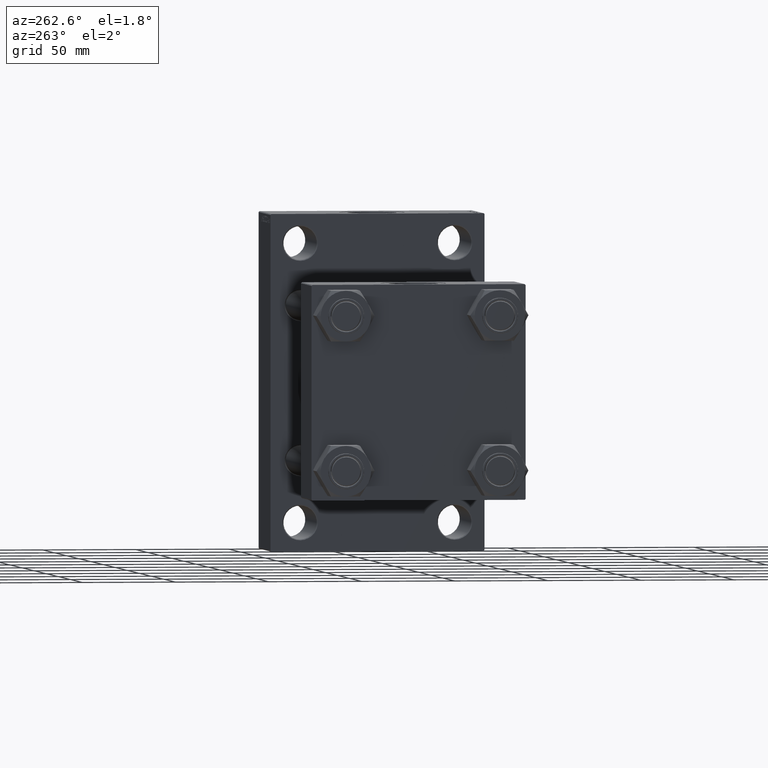
[diagram: clean part render]
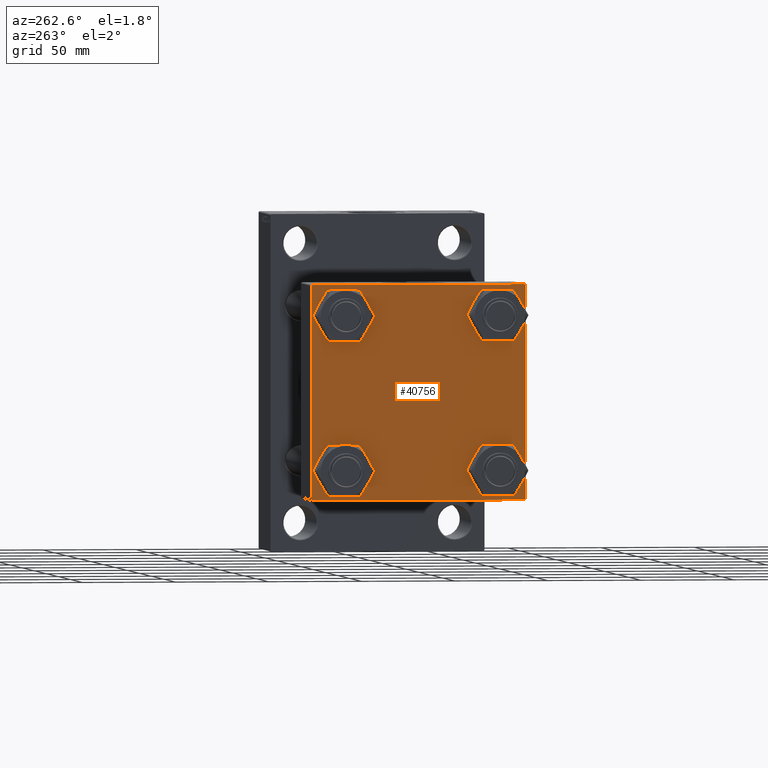
[diagram: same view with one face highlighted and labeled with its STEP entity id]
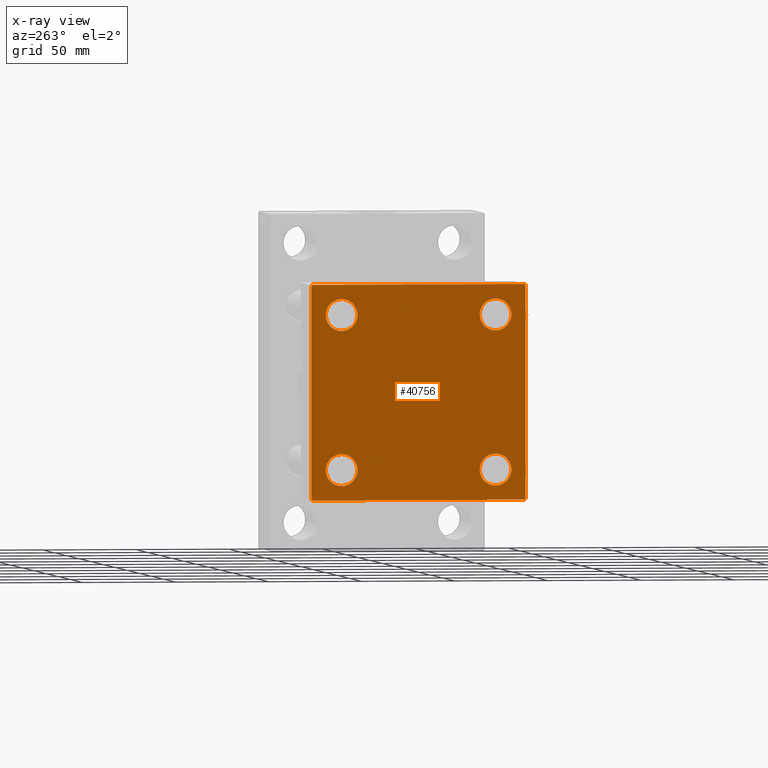
[diagram: x-ray of the same camera — body ghosted, the highlighted face saturated]
A machine part, auxiliary view. The second image highlights one B-rep face of the part: STEP entity #40756.
The next image is the same camera in x-ray: the body ghosted, the highlighted face saturated — about 0% of this face is hidden behind the body in this view.
In plain terms, the highlighted planar face has unit normal (-1, 0, 0).
Its self-contained STEP definition (entity closure, byte-faithful):
#283 = ORIENTED_EDGE ( 'NONE', *, *, #29268, .T. ) ;
#549 = CARTESIAN_POINT ( 'NONE',  ( 0.000000000000000000, -41.34999999999998721, 41.35000000000000853 ) ) ;
#961 = VECTOR ( 'NONE', #6995, 1000.000000000000114 ) ;
#1116 = CARTESIAN_POINT ( 'NONE',  ( 0.000000000000000000, 57.00000000000000711, 57.50000000000000711 ) ) ;
#1377 = EDGE_CURVE ( 'NONE', #48025, #29083, #45943, .T. ) ;
#1461 = DIRECTION ( 'NONE',  ( 1.000000000000000000, -0.000000000000000000, 0.000000000000000000 ) ) ;
#1639 = CARTESIAN_POINT ( 'NONE',  ( 0.000000000000000000, -41.34999999999998721, -32.85000000000001563 ) ) ;
#2412 = CARTESIAN_POINT ( 'NONE',  ( 0.000000000000000000, 57.49999999999999289, 57.00000000000003553 ) ) ;
#2436 = VERTEX_POINT ( 'NONE', #12231 ) ;
#2460 = DIRECTION ( 'NONE',  ( 1.000000000000000000, -0.000000000000000000, 0.000000000000000000 ) ) ;
#2568 = CARTESIAN_POINT ( 'NONE',  ( 0.000000000000000000, 41.34999999999999432, -32.85000000000000853 ) ) ;
#2900 = FACE_BOUND ( 'NONE', #11682, .T. ) ;
#3563 = EDGE_CURVE ( 'NONE', #21067, #13754, #21787, .T. ) ;
#3828 = VERTEX_POINT ( 'NONE', #36601 ) ;
#3999 = DIRECTION ( 'NONE',  ( 0.000000000000000000, 0.000000000000000000, -1.000000000000000000 ) ) ;
#4761 = DIRECTION ( 'NONE',  ( 1.000000000000000000, -0.000000000000000000, 0.000000000000000000 ) ) ;
#4861 = VERTEX_POINT ( 'NONE', #24474 ) ;
#4891 = AXIS2_PLACEMENT_3D ( 'NONE', #44220, #8012, #22919 ) ;
#6445 = DIRECTION ( 'NONE',  ( 0.000000000000000000, 0.000000000000000000, 1.000000000000000000 ) ) ;
#6842 = DIRECTION ( 'NONE',  ( 1.000000000000000000, -0.000000000000000000, 0.000000000000000000 ) ) ;
#6995 = DIRECTION ( 'NONE',  ( 0.000000000000000000, -0.7071067811865474617, 0.7071067811865474617 ) ) ;
#7182 = DIRECTION ( 'NONE',  ( 1.000000000000000000, -0.000000000000000000, 0.000000000000000000 ) ) ;
#7540 = FACE_BOUND ( 'NONE', #29568, .T. ) ;
#7629 = ORIENTED_EDGE ( 'NONE', *, *, #28561, .T. ) ;
#7654 = CARTESIAN_POINT ( 'NONE',  ( 0.000000000000000000, 57.00000000000002132, -57.49999999999999289 ) ) ;
#7665 = LINE ( 'NONE', #11566, #34459 ) ;
#7908 = VECTOR ( 'NONE', #14276, 1000.000000000000114 ) ;
#8012 = DIRECTION ( 'NONE',  ( -1.000000000000000000, 0.000000000000000000, -0.000000000000000000 ) ) ;
#8148 = DIRECTION ( 'NONE',  ( 0.000000000000000000, -1.000000000000000000, -1.206764157201257045E-16 ) ) ;
#8230 = ORIENTED_EDGE ( 'NONE', *, *, #39907, .T. ) ;
#8377 = CARTESIAN_POINT ( 'NONE',  ( 0.000000000000000000, -57.50000000000000711, 57.49999999999999289 ) ) ;
#8838 = AXIS2_PLACEMENT_3D ( 'NONE', #46035, #12540, #45325 ) ;
#9021 = CARTESIAN_POINT ( 'NONE',  ( 0.000000000000000000, 41.34999999999999432, 32.85000000000000853 ) ) ;
#9954 = ORIENTED_EDGE ( 'NONE', *, *, #47219, .T. ) ;
#10092 = CIRCLE ( 'NONE', #38198, 8.499999999999992895 ) ;
#10450 = EDGE_LOOP ( 'NONE', ( #42714, #9954 ) ) ;
#10498 = CARTESIAN_POINT ( 'NONE',  ( 0.000000000000000000, 41.34999999999999432, 41.35000000000000142 ) ) ;
#10614 = EDGE_CURVE ( 'NONE', #16938, #2436, #47772, .T. ) ;
#11421 = VERTEX_POINT ( 'NONE', #36043 ) ;
#11469 = ORIENTED_EDGE ( 'NONE', *, *, #15853, .T. ) ;
#11566 = CARTESIAN_POINT ( 'NONE',  ( 0.000000000000000000, 57.49999999999999289, -57.49999999999999289 ) ) ;
#11682 = EDGE_LOOP ( 'NONE', ( #11469, #42331 ) ) ;
#12011 = CIRCLE ( 'NONE', #36225, 8.499999999999992895 ) ;
#12187 = ORIENTED_EDGE ( 'NONE', *, *, #40263, .T. ) ;
#12231 = CARTESIAN_POINT ( 'NONE',  ( 0.000000000000000000, -57.00000000000003553, 57.49999999999999289 ) ) ;
#12254 = EDGE_CURVE ( 'NONE', #47296, #31603, #7665, .T. ) ;
#12260 = EDGE_CURVE ( 'NONE', #16938, #41501, #19372, .T. ) ;
#12394 = AXIS2_PLACEMENT_3D ( 'NONE', #33331, #7182, #44581 ) ;
#12540 = DIRECTION ( 'NONE',  ( 1.000000000000000000, -0.000000000000000000, 0.000000000000000000 ) ) ;
#13645 = DIRECTION ( 'NONE',  ( 0.000000000000000000, -1.000000000000000000, -1.206764157201257045E-16 ) ) ;
#13754 = VERTEX_POINT ( 'NONE', #9021 ) ;
#13844 = LINE ( 'NONE', #17768, #24363 ) ;
#13919 = CARTESIAN_POINT ( 'NONE',  ( 0.000000000000000000, 41.34999999999999432, 49.85000000000000142 ) ) ;
#14149 = EDGE_CURVE ( 'NONE', #31603, #41501, #34758, .T. ) ;
#14276 = DIRECTION ( 'NONE',  ( -0.000000000000000000, 0.7071067811865376918, 0.7071067811865573427 ) ) ;
#15453 = DIRECTION ( 'NONE',  ( 1.000000000000000000, -0.000000000000000000, 0.000000000000000000 ) ) ;
#15631 = ORIENTED_EDGE ( 'NONE', *, *, #30094, .F. ) ;
#15853 = EDGE_CURVE ( 'NONE', #11421, #29589, #35392, .T. ) ;
#15992 = AXIS2_PLACEMENT_3D ( 'NONE', #549, #15453, #32648 ) ;
#16938 = VERTEX_POINT ( 'NONE', #32592 ) ;
#17768 = CARTESIAN_POINT ( 'NONE',  ( 0.000000000000000000, 57.24999999999922551, 57.25000000000081712 ) ) ;
#18568 = ORIENTED_EDGE ( 'NONE', *, *, #12260, .F. ) ;
#18799 = LINE ( 'NONE', #25421, #40786 ) ;
#19314 = CIRCLE ( 'NONE', #32581, 8.499999999999992895 ) ;
#19372 = LINE ( 'NONE', #8377, #40721 ) ;
#19481 = VECTOR ( 'NONE', #13645, 1000.000000000000000 ) ;
#20125 = CARTESIAN_POINT ( 'NONE',  ( 0.000000000000000000, -57.00000000000000711, -57.50000000000000711 ) ) ;
#20374 = CARTESIAN_POINT ( 'NONE',  ( 0.000000000000000000, -41.34999999999998721, -41.35000000000000853 ) ) ;
#21067 = VERTEX_POINT ( 'NONE', #13919 ) ;
#21091 = DIRECTION ( 'NONE',  ( 1.000000000000000000, -0.000000000000000000, 0.000000000000000000 ) ) ;
#21581 = CARTESIAN_POINT ( 'NONE',  ( 0.000000000000000000, 41.34999999999999432, 41.35000000000000142 ) ) ;
#21787 = CIRCLE ( 'NONE', #32763, 8.499999999999992895 ) ;
#22156 = DIRECTION ( 'NONE',  ( 0.000000000000000000, 0.7071067811865573427, -0.7071067811865376918 ) ) ;
#22435 = FACE_BOUND ( 'NONE', #39603, .T. ) ;
#22748 = EDGE_CURVE ( 'NONE', #29589, #11421, #40996, .T. ) ;
#22919 = DIRECTION ( 'NONE',  ( -0.000000000000000000, 0.000000000000000000, 1.000000000000000000 ) ) ;
#24363 = VECTOR ( 'NONE', #22156, 1000.000000000000114 ) ;
#24385 = VERTEX_POINT ( 'NONE', #2568 ) ;
#24474 = CARTESIAN_POINT ( 'NONE',  ( 0.000000000000000000, 57.49999999999999289, -57.00000000000000711 ) ) ;
#24863 = AXIS2_PLACEMENT_3D ( 'NONE', #34941, #1461, #27611 ) ;
#24871 = EDGE_LOOP ( 'NONE', ( #29317, #12187, #28121, #28365, #18568, #41231, #15631, #8230 ) ) ;
#25168 = DIRECTION ( 'NONE',  ( 0.000000000000000000, 0.000000000000000000, 1.000000000000000000 ) ) ;
#25421 = CARTESIAN_POINT ( 'NONE',  ( 0.000000000000000000, 57.25000000000081712, -57.24999999999922551 ) ) ;
#25860 = EDGE_CURVE ( 'NONE', #24385, #3828, #19314, .T. ) ;
#26179 = EDGE_CURVE ( 'NONE', #43401, #4861, #41316, .T. ) ;
#26647 = CARTESIAN_POINT ( 'NONE',  ( 0.000000000000000000, 57.49999999999999289, 57.50000000000000711 ) ) ;
#27229 = CIRCLE ( 'NONE', #12394, 8.499999999999992895 ) ;
#27611 = DIRECTION ( 'NONE',  ( 0.000000000000000000, 0.000000000000000000, 1.000000000000000000 ) ) ;
#27925 = VECTOR ( 'NONE', #34204, 1000.000000000000000 ) ;
#28121 = ORIENTED_EDGE ( 'NONE', *, *, #12254, .T. ) ;
#28365 = ORIENTED_EDGE ( 'NONE', *, *, #14149, .T. ) ;
#28561 = EDGE_CURVE ( 'NONE', #3828, #24385, #27229, .T. ) ;
#29062 = FACE_OUTER_BOUND ( 'NONE', #24871, .T. ) ;
#29083 = VERTEX_POINT ( 'NONE', #32181 ) ;
#29268 = EDGE_CURVE ( 'NONE', #29083, #48025, #10092, .T. ) ;
#29317 = ORIENTED_EDGE ( 'NONE', *, *, #26179, .T. ) ;
#29568 = EDGE_LOOP ( 'NONE', ( #33183, #283 ) ) ;
#29589 = VERTEX_POINT ( 'NONE', #38543 ) ;
#29608 = CARTESIAN_POINT ( 'NONE',  ( 0.000000000000000000, -57.50000000000000711, -57.00000000000000711 ) ) ;
#30094 = EDGE_CURVE ( 'NONE', #36124, #2436, #32231, .T. ) ;
#31325 = DIRECTION ( 'NONE',  ( 0.000000000000000000, 0.000000000000000000, 1.000000000000000000 ) ) ;
#31603 = VERTEX_POINT ( 'NONE', #20125 ) ;
#32047 = CARTESIAN_POINT ( 'NONE',  ( 0.000000000000000000, 41.34999999999999432, -41.35000000000000142 ) ) ;
#32181 = CARTESIAN_POINT ( 'NONE',  ( 0.000000000000000000, -41.34999999999998721, -49.85000000000000853 ) ) ;
#32231 = LINE ( 'NONE', #47131, #19481 ) ;
#32581 = AXIS2_PLACEMENT_3D ( 'NONE', #32047, #2460, #31325 ) ;
#32592 = CARTESIAN_POINT ( 'NONE',  ( 0.000000000000000000, -57.50000000000000711, 57.00000000000000711 ) ) ;
#32648 = DIRECTION ( 'NONE',  ( 0.000000000000000000, 0.000000000000000000, 1.000000000000000000 ) ) ;
#32763 = AXIS2_PLACEMENT_3D ( 'NONE', #10498, #6842, #25168 ) ;
#33183 = ORIENTED_EDGE ( 'NONE', *, *, #1377, .T. ) ;
#33331 = CARTESIAN_POINT ( 'NONE',  ( 0.000000000000000000, 41.34999999999999432, -41.35000000000000142 ) ) ;
#33686 = FACE_BOUND ( 'NONE', #10450, .T. ) ;
#34204 = DIRECTION ( 'NONE',  ( 0.000000000000000000, 0.000000000000000000, -1.000000000000000000 ) ) ;
#34459 = VECTOR ( 'NONE', #8148, 1000.000000000000000 ) ;
#34758 = LINE ( 'NONE', #37293, #961 ) ;
#34941 = CARTESIAN_POINT ( 'NONE',  ( 0.000000000000000000, -41.34999999999998721, -41.35000000000000853 ) ) ;
#35392 = CIRCLE ( 'NONE', #8838, 8.499999999999992895 ) ;
#36043 = CARTESIAN_POINT ( 'NONE',  ( 0.000000000000000000, -41.34999999999998721, 49.85000000000000853 ) ) ;
#36124 = VERTEX_POINT ( 'NONE', #1116 ) ;
#36225 = AXIS2_PLACEMENT_3D ( 'NONE', #21581, #21091, #6445 ) ;
#36601 = CARTESIAN_POINT ( 'NONE',  ( 0.000000000000000000, 41.34999999999999432, -49.85000000000000142 ) ) ;
#37293 = CARTESIAN_POINT ( 'NONE',  ( 0.000000000000000000, -57.25000000000000711, -57.25000000000000711 ) ) ;
#38198 = AXIS2_PLACEMENT_3D ( 'NONE', #20374, #4761, #38261 ) ;
#38261 = DIRECTION ( 'NONE',  ( 0.000000000000000000, 0.000000000000000000, 1.000000000000000000 ) ) ;
#38543 = CARTESIAN_POINT ( 'NONE',  ( 0.000000000000000000, -41.34999999999998721, 32.85000000000001563 ) ) ;
#39603 = EDGE_LOOP ( 'NONE', ( #41008, #7629 ) ) ;
#39907 = EDGE_CURVE ( 'NONE', #36124, #43401, #13844, .T. ) ;
#40263 = EDGE_CURVE ( 'NONE', #4861, #47296, #18799, .T. ) ;
#40311 = PLANE ( 'NONE',  #4891 ) ;
#40332 = DIRECTION ( 'NONE',  ( -0.000000000000000000, -0.7071067811865376918, -0.7071067811865573427 ) ) ;
#40721 = VECTOR ( 'NONE', #3999, 1000.000000000000000 ) ;
#40756 = ADVANCED_FACE ( 'NONE', ( #2900, #7540, #22435, #33686, #29062 ), #40311, .T. ) ;
#40786 = VECTOR ( 'NONE', #40332, 1000.000000000000114 ) ;
#40996 = CIRCLE ( 'NONE', #15992, 8.499999999999992895 ) ;
#41008 = ORIENTED_EDGE ( 'NONE', *, *, #25860, .T. ) ;
#41231 = ORIENTED_EDGE ( 'NONE', *, *, #10614, .T. ) ;
#41316 = LINE ( 'NONE', #26647, #27925 ) ;
#41501 = VERTEX_POINT ( 'NONE', #29608 ) ;
#42331 = ORIENTED_EDGE ( 'NONE', *, *, #22748, .T. ) ;
#42714 = ORIENTED_EDGE ( 'NONE', *, *, #3563, .T. ) ;
#43401 = VERTEX_POINT ( 'NONE', #2412 ) ;
#44220 = CARTESIAN_POINT ( 'NONE',  ( 0.000000000000000000, 0.000000000000000000, 0.000000000000000000 ) ) ;
#44350 = CARTESIAN_POINT ( 'NONE',  ( -0.000000000000000000, -57.25000000000081712, 57.24999999999922551 ) ) ;
#44581 = DIRECTION ( 'NONE',  ( 0.000000000000000000, 0.000000000000000000, 1.000000000000000000 ) ) ;
#45325 = DIRECTION ( 'NONE',  ( 0.000000000000000000, 0.000000000000000000, 1.000000000000000000 ) ) ;
#45943 = CIRCLE ( 'NONE', #24863, 8.499999999999992895 ) ;
#46035 = CARTESIAN_POINT ( 'NONE',  ( 0.000000000000000000, -41.34999999999998721, 41.35000000000000853 ) ) ;
#47131 = CARTESIAN_POINT ( 'NONE',  ( 0.000000000000000000, 57.49999999999999289, 57.50000000000000711 ) ) ;
#47219 = EDGE_CURVE ( 'NONE', #13754, #21067, #12011, .T. ) ;
#47296 = VERTEX_POINT ( 'NONE', #7654 ) ;
#47772 = LINE ( 'NONE', #44350, #7908 ) ;
#48025 = VERTEX_POINT ( 'NONE', #1639 ) ;